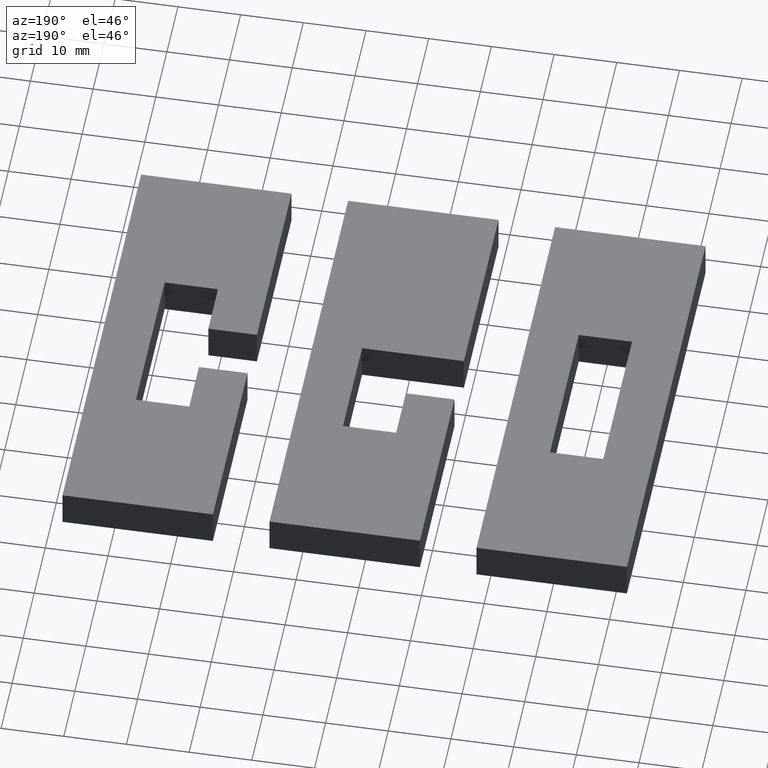
[diagram: clean part render]
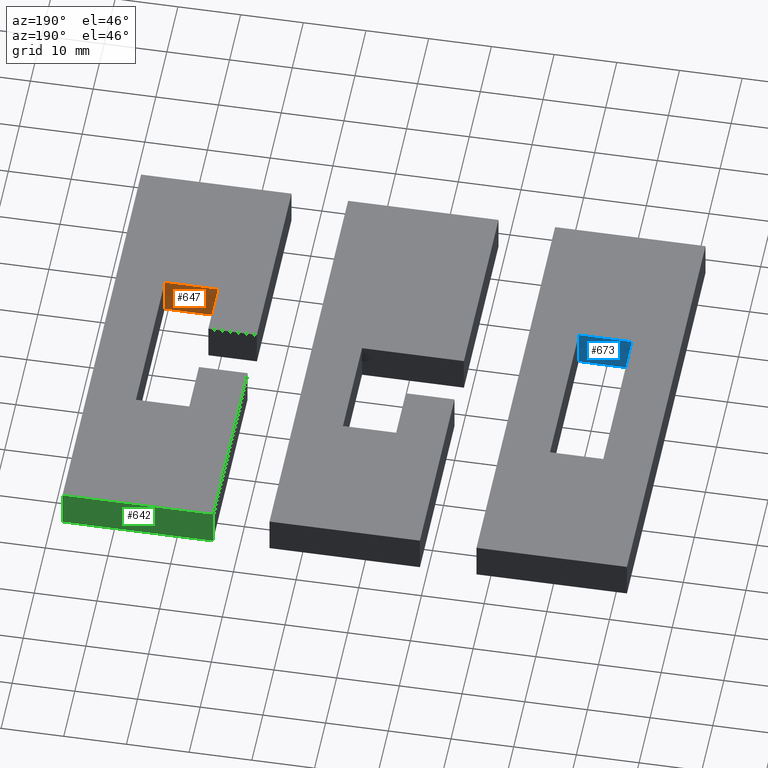
[diagram: same view with three faces highlighted in distinct colors, each labeled with its STEP entity id]
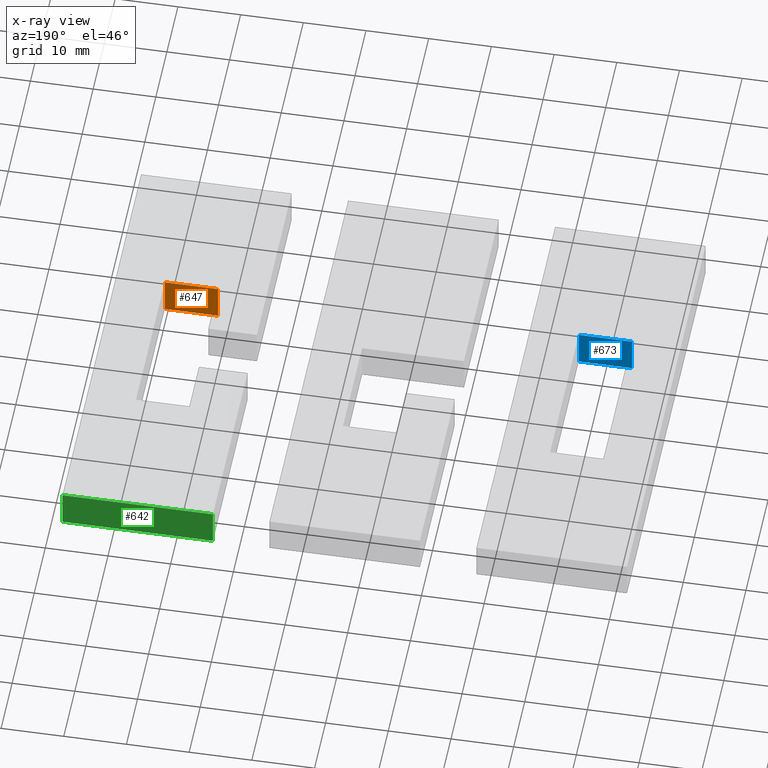
[diagram: x-ray of the same camera — body ghosted, the three highlighted faces saturated]
A machine part, auxiliary view with three faces highlighted in distinct colors.
The next image is the same camera in x-ray (body ghosted, the three faces saturated) — at least one of them is partly hidden behind the body in this view.
Their STEP definitions:

[orange] entity #647 — the highlighted planar face has unit normal (0, 1, 0).
#68=ORIENTED_EDGE('',*,*,#213,.T.);
#69=ORIENTED_EDGE('',*,*,#227,.T.);
#70=ORIENTED_EDGE('',*,*,#210,.F.);
#71=ORIENTED_EDGE('',*,*,#228,.F.);
#210=EDGE_CURVE('',#299,#291,#360,.T.);
#213=EDGE_CURVE('',#302,#301,#363,.T.);
#227=EDGE_CURVE('',#301,#291,#377,.T.);
#228=EDGE_CURVE('',#302,#299,#378,.T.);
#291=VERTEX_POINT('',#928);
#299=VERTEX_POINT('',#945);
#301=VERTEX_POINT('',#951);
#302=VERTEX_POINT('',#953);
#360=LINE('',#946,#450);
#363=LINE('',#952,#453);
#377=LINE('',#980,#467);
#378=LINE('',#982,#468);
#450=VECTOR('',#767,1.);
#453=VECTOR('',#772,1.);
#467=VECTOR('',#798,1.);
#468=VECTOR('',#801,1.);
#535=EDGE_LOOP('',(#68,#69,#70,#71));
#573=FACE_BOUND('',#535,.T.);
#611=PLANE('',#718);
#647=ADVANCED_FACE('',(#573),#611,.T.);
#718=AXIS2_PLACEMENT_3D('',#981,#799,#800);
#767=DIRECTION('',(-1.,0.,0.));
#772=DIRECTION('',(-1.,0.,0.));
#798=DIRECTION('',(0.,0.,1.));
#799=DIRECTION('',(0.,1.,0.));
#800=DIRECTION('',(0.,0.,1.));
#801=DIRECTION('',(0.,0.,1.));
#928=CARTESIAN_POINT('',(0.06179,-0.013,0.006));
#945=CARTESIAN_POINT('',(0.07029,-0.013,0.006));
#946=CARTESIAN_POINT('',(0.06604,-0.013,0.006));
#951=CARTESIAN_POINT('',(0.06179,-0.013,-6.93889390390723E-18));
#952=CARTESIAN_POINT('',(0.03302,-0.013,0.));
#953=CARTESIAN_POINT('',(0.07029,-0.013,-6.93889390390723E-18));
#980=CARTESIAN_POINT('',(0.06179,-0.013,-0.0194));
#981=CARTESIAN_POINT('',(0.06604,-0.013,-0.0194));
#982=CARTESIAN_POINT('',(0.07029,-0.013,-0.0194));

[blue] entity #673 — the highlighted planar face has unit normal (0, 1, 0).
#192=ORIENTED_EDGE('',*,*,#277,.T.);
#193=ORIENTED_EDGE('',*,*,#285,.T.);
#194=ORIENTED_EDGE('',*,*,#268,.F.);
#195=ORIENTED_EDGE('',*,*,#282,.F.);
#268=EDGE_CURVE('',#336,#337,#418,.T.);
#277=EDGE_CURVE('',#343,#345,#427,.T.);
#282=EDGE_CURVE('',#343,#336,#432,.T.);
#285=EDGE_CURVE('',#345,#337,#435,.T.);
#336=VERTEX_POINT('',#1067);
#337=VERTEX_POINT('',#1069);
#343=VERTEX_POINT('',#1082);
#345=VERTEX_POINT('',#1086);
#418=LINE('',#1068,#508);
#427=LINE('',#1087,#517);
#432=LINE('',#1097,#522);
#435=LINE('',#1102,#525);
#508=VECTOR('',#879,1.);
#517=VECTOR('',#890,1.);
#522=VECTOR('',#905,1.);
#525=VECTOR('',#912,1.);
#563=EDGE_LOOP('',(#192,#193,#194,#195));
#601=FACE_BOUND('',#563,.T.);
#637=PLANE('',#746);
#673=ADVANCED_FACE('',(#601),#637,.T.);
#746=AXIS2_PLACEMENT_3D('',#1103,#913,#914);
#879=DIRECTION('',(-1.,0.,0.));
#890=DIRECTION('',(-1.,0.,0.));
#905=DIRECTION('',(0.,0.,1.));
#912=DIRECTION('',(0.,0.,1.));
#913=DIRECTION('',(0.,1.,0.));
#914=DIRECTION('',(0.,0.,1.));
#1067=CARTESIAN_POINT('',(0.00425,-0.013,0.006));
#1068=CARTESIAN_POINT('',(-6.93889390390723E-18,-0.013,0.006));
#1069=CARTESIAN_POINT('',(-0.00425,-0.013,0.006));
#1082=CARTESIAN_POINT('',(0.00425,-0.013,0.));
#1086=CARTESIAN_POINT('',(-0.00425,-0.013,-6.93889390390723E-18));
#1087=CARTESIAN_POINT('',(0.03302,-0.013,0.));
#1097=CARTESIAN_POINT('',(0.00425,-0.013,-0.0194));
#1102=CARTESIAN_POINT('',(-0.00425,-0.013,-0.0194));
#1103=CARTESIAN_POINT('',(-6.93889390390723E-18,-0.013,-0.0194));

[green] entity #642 — the highlighted planar face has unit normal (0, -1, 0).
#48=ORIENTED_EDGE('',*,*,#219,.T.);
#49=ORIENTED_EDGE('',*,*,#224,.F.);
#50=ORIENTED_EDGE('',*,*,#204,.F.);
#51=ORIENTED_EDGE('',*,*,#222,.T.);
#204=EDGE_CURVE('',#293,#294,#354,.T.);
#219=EDGE_CURVE('',#308,#307,#369,.T.);
#222=EDGE_CURVE('',#293,#308,#372,.T.);
#224=EDGE_CURVE('',#294,#307,#374,.T.);
#293=VERTEX_POINT('',#933);
#294=VERTEX_POINT('',#935);
#307=VERTEX_POINT('',#963);
#308=VERTEX_POINT('',#965);
#354=LINE('',#934,#444);
#369=LINE('',#964,#459);
#372=LINE('',#970,#462);
#374=LINE('',#973,#464);
#444=VECTOR('',#761,1.);
#459=VECTOR('',#778,1.);
#462=VECTOR('',#783,1.);
#464=VECTOR('',#787,1.);
#530=EDGE_LOOP('',(#48,#49,#50,#51));
#568=FACE_BOUND('',#530,.T.);
#606=PLANE('',#713);
#642=ADVANCED_FACE('',(#568),#606,.F.);
#713=AXIS2_PLACEMENT_3D('',#972,#785,#786);
#761=DIRECTION('',(-1.,0.,0.));
#778=DIRECTION('',(-1.,0.,0.));
#783=DIRECTION('',(0.,0.,-1.));
#785=DIRECTION('',(0.,-1.,0.));
#786=DIRECTION('',(0.,0.,-1.));
#787=DIRECTION('',(0.,0.,-1.));
#933=CARTESIAN_POINT('',(0.07804,0.03556,0.006));
#934=CARTESIAN_POINT('',(0.06604,0.03556,0.006));
#935=CARTESIAN_POINT('',(0.05404,0.03556,0.006));
#963=CARTESIAN_POINT('',(0.05404,0.03556,0.));
#964=CARTESIAN_POINT('',(0.06604,0.03556,0.));
#965=CARTESIAN_POINT('',(0.07804,0.03556,0.));
#970=CARTESIAN_POINT('',(0.07804,0.03556,0.006));
#972=CARTESIAN_POINT('',(0.06604,0.03556,0.006));
#973=CARTESIAN_POINT('',(0.05404,0.03556,0.006));